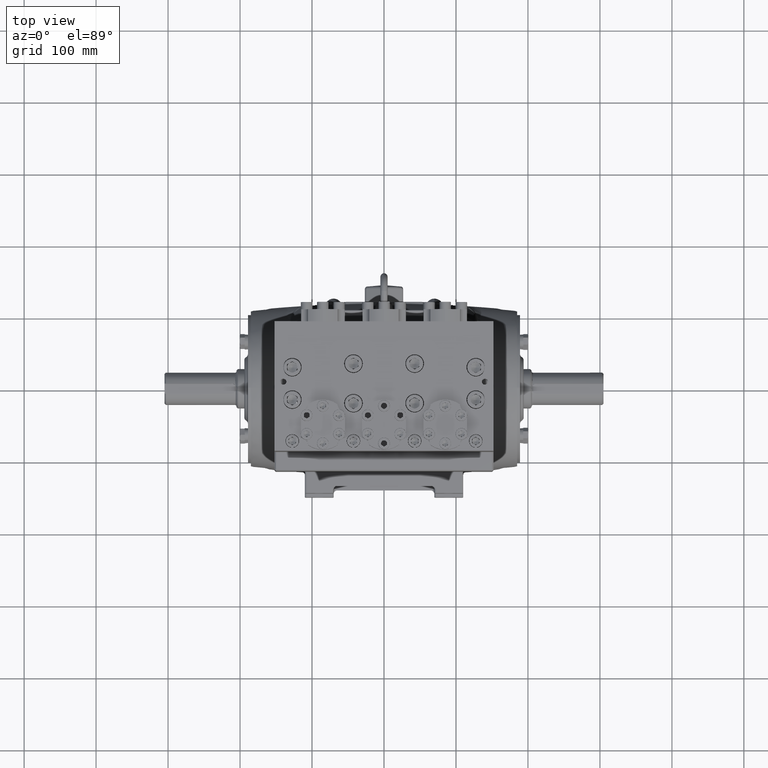
[diagram: clean part render]
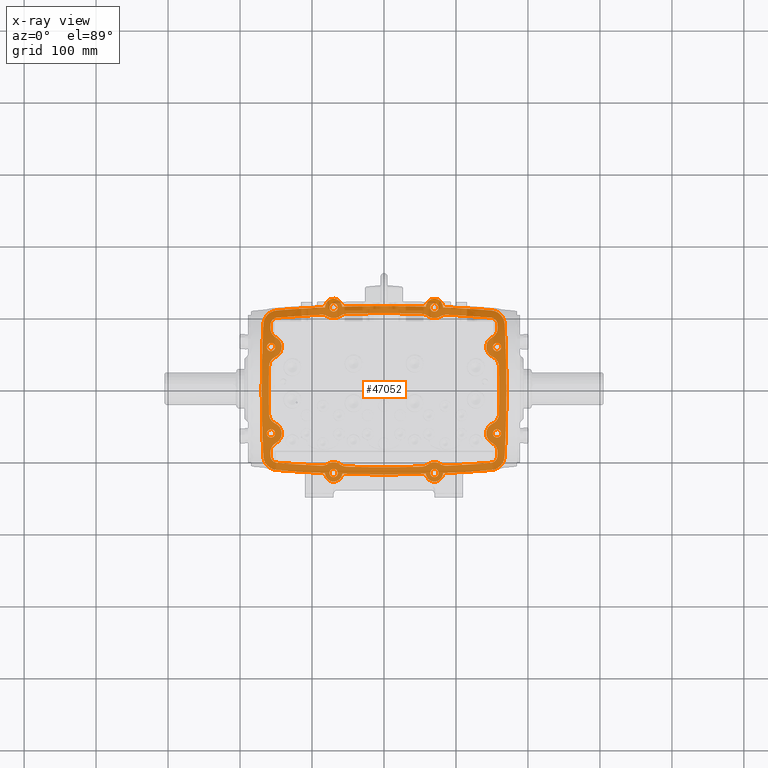
[diagram: x-ray — body ghosted, one internal face saturated and labeled with its STEP entity id]
A machine part, top view, then the same camera in x-ray: the body is ghosted and one INTERNAL B-rep face — a face not visible from any outside direction — is saturated and labeled: STEP entity #47052.
In plain terms, the highlighted planar face has unit normal (-0, 0, -1).
Its self-contained STEP definition (entity closure, byte-faithful):
#205 = CARTESIAN_POINT ( 'NONE',  ( 6.287298468513228933, -1.295798474597251504, -4.527559055118111075 ) ) ;
#294 = VERTEX_POINT ( 'NONE', #66908 ) ;
#635 = DIRECTION ( 'NONE',  ( -0.000000000000000000, -0.000000000000000000, -1.000000000000000000 ) ) ;
#964 = EDGE_CURVE ( 'NONE', #21010, #34440, #26823, .T. ) ;
#1030 = CIRCLE ( 'NONE', #19286, 70.86614173228346658 ) ;
#1106 = CARTESIAN_POINT ( 'NONE',  ( 0.000000000000000000, -66.25984251968503713, -4.527559055118111075 ) ) ;
#1281 = DIRECTION ( 'NONE',  ( 1.000000000000000000, 0.000000000000000000, 0.000000000000000000 ) ) ;
#1327 = DIRECTION ( 'NONE',  ( 1.000000000000000000, 0.000000000000000000, 0.000000000000000000 ) ) ;
#1533 = ORIENTED_EDGE ( 'NONE', *, *, #13244, .T. ) ;
#1878 = EDGE_CURVE ( 'NONE', #54940, #75515, #9956, .T. ) ;
#2008 = AXIS2_PLACEMENT_3D ( 'NONE', #73000, #52949, #79529 ) ;
#2011 = CARTESIAN_POINT ( 'NONE',  ( 2.755905511811023612, -4.527559055118110187, -4.527559055118111075 ) ) ;
#2030 = CARTESIAN_POINT ( 'NONE',  ( 6.600522642258369821, -3.617487388704947016, -4.527559055118111075 ) ) ;
#2217 = CARTESIAN_POINT ( 'NONE',  ( 6.215528999314378744, -3.433332498902715191, -4.527559055118111075 ) ) ;
#2444 = VERTEX_POINT ( 'NONE', #37324 ) ;
#2652 = CIRCLE ( 'NONE', #24815, 70.47244094488188182 ) ;
#2725 = CIRCLE ( 'NONE', #19695, 0.2263779527559057203 ) ;
#2901 = EDGE_CURVE ( 'NONE', #16295, #72583, #58497, .T. ) ;
#3037 = DIRECTION ( 'NONE',  ( 0.000000000000000000, 0.000000000000000000, 1.000000000000000000 ) ) ;
#3267 = ORIENTED_EDGE ( 'NONE', *, *, #76774, .T. ) ;
#3572 = FACE_BOUND ( 'NONE', #60139, .T. ) ;
#3724 = CIRCLE ( 'NONE', #21975, 0.5905511811023583801 ) ;
#3830 = VERTEX_POINT ( 'NONE', #18866 ) ;
#3918 = AXIS2_PLACEMENT_3D ( 'NONE', #31064, #24099, #17956 ) ;
#4114 = DIRECTION ( 'NONE',  ( 0.000000000000000000, 0.000000000000000000, 1.000000000000000000 ) ) ;
#4329 = AXIS2_PLACEMENT_3D ( 'NONE', #24324, #68609, #43206 ) ;
#4367 = VERTEX_POINT ( 'NONE', #58938 ) ;
#4654 = ORIENTED_EDGE ( 'NONE', *, *, #22416, .T. ) ;
#4667 = DIRECTION ( 'NONE',  ( 1.000000000000000000, 0.000000000000000000, 0.000000000000000000 ) ) ;
#5106 = CARTESIAN_POINT ( 'NONE',  ( 0.000000000000000000, -66.25984251968503713, -4.527559055118111075 ) ) ;
#5441 = DIRECTION ( 'NONE',  ( 0.000000000000000000, 0.000000000000000000, 1.000000000000000000 ) ) ;
#5487 = DIRECTION ( 'NONE',  ( -1.000000000000000000, 0.000000000000000000, 0.000000000000000000 ) ) ;
#5588 = DIRECTION ( 'NONE',  ( -0.000000000000000000, 0.000000000000000000, 1.000000000000000000 ) ) ;
#5593 = AXIS2_PLACEMENT_3D ( 'NONE', #71670, #7363, #72065 ) ;
#6061 = VERTEX_POINT ( 'NONE', #76156 ) ;
#6184 = EDGE_CURVE ( 'NONE', #59043, #28687, #19698, .T. ) ;
#6386 = VERTEX_POINT ( 'NONE', #54548 ) ;
#6411 = ORIENTED_EDGE ( 'NONE', *, *, #16241, .F. ) ;
#6591 = EDGE_CURVE ( 'NONE', #294, #57059, #57759, .T. ) ;
#6600 = CARTESIAN_POINT ( 'NONE',  ( 2.051618992759705939, 4.182728360702418158, -4.527559055118111075 ) ) ;
#6728 = ORIENTED_EDGE ( 'NONE', *, *, #76958, .F. ) ;
#6768 = CIRCLE ( 'NONE', #61776, 70.86614173228345237 ) ;
#6975 = DIRECTION ( 'NONE',  ( 1.000000000000000000, 0.000000000000000000, 0.000000000000000000 ) ) ;
#7021 = ORIENTED_EDGE ( 'NONE', *, *, #65896, .T. ) ;
#7105 = DIRECTION ( 'NONE',  ( -0.000000000000000000, -0.000000000000000000, -1.000000000000000000 ) ) ;
#7117 = CARTESIAN_POINT ( 'NONE',  ( 3.431250907682156903, -4.129016328419565340, -4.527559055118111075 ) ) ;
#7227 = ORIENTED_EDGE ( 'NONE', *, *, #52750, .T. ) ;
#7279 = ORIENTED_EDGE ( 'NONE', *, *, #68312, .T. ) ;
#7363 = DIRECTION ( 'NONE',  ( -0.000000000000000000, 0.000000000000000000, 1.000000000000000000 ) ) ;
#7634 = DIRECTION ( 'NONE',  ( -1.000000000000000000, 0.000000000000000000, 0.000000000000000000 ) ) ;
#7673 = AXIS2_PLACEMENT_3D ( 'NONE', #16535, #29643, #48901 ) ;
#7770 = EDGE_CURVE ( 'NONE', #57831, #42772, #55064, .T. ) ;
#7799 = EDGE_CURVE ( 'NONE', #57059, #294, #2725, .T. ) ;
#7853 = CARTESIAN_POINT ( 'NONE',  ( -6.181102362204723200, -2.362204724409448620, -4.527559055118111075 ) ) ;
#8232 = ORIENTED_EDGE ( 'NONE', *, *, #36036, .F. ) ;
#8249 = EDGE_CURVE ( 'NONE', #71209, #70759, #70747, .T. ) ;
#8260 = DIRECTION ( 'NONE',  ( 1.000000000000000000, 0.000000000000000000, 0.000000000000000000 ) ) ;
#8287 = ORIENTED_EDGE ( 'NONE', *, *, #79605, .T. ) ;
#8299 = ORIENTED_EDGE ( 'NONE', *, *, #76352, .F. ) ;
#8928 = EDGE_CURVE ( 'NONE', #74305, #78400, #14566, .T. ) ;
#8978 = EDGE_CURVE ( 'NONE', #49465, #43802, #56458, .T. ) ;
#9015 = DIRECTION ( 'NONE',  ( -1.000000000000000000, 0.000000000000000000, 0.000000000000000000 ) ) ;
#9144 = DIRECTION ( 'NONE',  ( 1.000000000000000000, 0.000000000000000000, 0.000000000000000000 ) ) ;
#9148 = AXIS2_PLACEMENT_3D ( 'NONE', #1106, #38774, #7634 ) ;
#9250 = DIRECTION ( 'NONE',  ( 1.000000000000000000, 0.000000000000000000, 0.000000000000000000 ) ) ;
#9279 = CARTESIAN_POINT ( 'NONE',  ( -6.287298468513228933, 1.295798474597258831, -4.527559055118111075 ) ) ;
#9574 = AXIS2_PLACEMENT_3D ( 'NONE', #67384, #29662, #42389 ) ;
#9705 = FACE_BOUND ( 'NONE', #41863, .T. ) ;
#9809 = CIRCLE ( 'NONE', #66084, 0.5905511811023615998 ) ;
#9956 = CIRCLE ( 'NONE', #77963, 70.47244094488188182 ) ;
#10095 = CARTESIAN_POINT ( 'NONE',  ( 0.000000000000000000, -66.25984251968503713, -4.527559055118111075 ) ) ;
#10510 = VERTEX_POINT ( 'NONE', #59465 ) ;
#10607 = CARTESIAN_POINT ( 'NONE',  ( 6.407480314960629642, -2.362204724409448620, -4.527559055118111075 ) ) ;
#10637 = ORIENTED_EDGE ( 'NONE', *, *, #964, .T. ) ;
#10680 = DIRECTION ( 'NONE',  ( 1.000000000000000000, 0.000000000000000000, 0.000000000000000000 ) ) ;
#10696 = VERTEX_POINT ( 'NONE', #49155 ) ;
#10782 = ORIENTED_EDGE ( 'NONE', *, *, #27752, .T. ) ;
#10864 = CIRCLE ( 'NONE', #44900, 0.2263779527559057203 ) ;
#11020 = CARTESIAN_POINT ( 'NONE',  ( -2.755905511811023612, -4.527559055118110187, -4.527559055118111075 ) ) ;
#11211 = CARTESIAN_POINT ( 'NONE',  ( -2.755905511811023612, -4.527559055118110187, -4.527559055118111075 ) ) ;
#11261 = CIRCLE ( 'NONE', #77936, 70.47244094488186761 ) ;
#11608 = EDGE_LOOP ( 'NONE', ( #64497, #59387 ) ) ;
#11801 = ORIENTED_EDGE ( 'NONE', *, *, #46329, .F. ) ;
#12010 = FACE_BOUND ( 'NONE', #33773, .T. ) ;
#12091 = CARTESIAN_POINT ( 'NONE',  ( 5.954724409448820310, 2.362204724409448620, -4.527559055118111075 ) ) ;
#12206 = VERTEX_POINT ( 'NONE', #32165 ) ;
#12283 = VERTEX_POINT ( 'NONE', #76409 ) ;
#12308 = AXIS2_PLACEMENT_3D ( 'NONE', #46242, #76970, #27388 ) ;
#12407 = EDGE_CURVE ( 'NONE', #34284, #63166, #17588, .T. ) ;
#12624 = CIRCLE ( 'NONE', #27184, 0.5905511811023611557 ) ;
#12641 = VERTEX_POINT ( 'NONE', #39044 ) ;
#12713 = AXIS2_PLACEMENT_3D ( 'NONE', #35659, #68038, #10680 ) ;
#12959 = EDGE_CURVE ( 'NONE', #69509, #70436, #68070, .T. ) ;
#13244 = EDGE_CURVE ( 'NONE', #32938, #80083, #39221, .T. ) ;
#13311 = DIRECTION ( 'NONE',  ( -1.000000000000000000, 0.000000000000000000, 0.000000000000000000 ) ) ;
#13464 = VERTEX_POINT ( 'NONE', #28286 ) ;
#14055 = DIRECTION ( 'NONE',  ( -0.000000000000000000, -0.000000000000000000, -1.000000000000000000 ) ) ;
#14111 = AXIS2_PLACEMENT_3D ( 'NONE', #36737, #49842, #68304 ) ;
#14141 = ORIENTED_EDGE ( 'NONE', *, *, #25606, .T. ) ;
#14287 = EDGE_CURVE ( 'NONE', #56849, #4367, #68184, .T. ) ;
#14336 = EDGE_CURVE ( 'NONE', #28687, #31905, #17092, .T. ) ;
#14566 = CIRCLE ( 'NONE', #72198, 70.47244094488188182 ) ;
#14584 = EDGE_CURVE ( 'NONE', #67305, #59635, #65610, .T. ) ;
#15059 = VERTEX_POINT ( 'NONE', #49517 ) ;
#15099 = AXIS2_PLACEMENT_3D ( 'NONE', #50510, #30841, #31247 ) ;
#15147 = CARTESIAN_POINT ( 'NONE',  ( -3.402497408455763317, 3.539165555949416841, -4.527559055118111075 ) ) ;
#15274 = ORIENTED_EDGE ( 'NONE', *, *, #73923, .F. ) ;
#15410 = DIRECTION ( 'NONE',  ( 1.000000000000000000, 0.000000000000000000, 0.000000000000000000 ) ) ;
#15946 = CARTESIAN_POINT ( 'NONE',  ( 2.051618992759716598, -4.182728360702411052, -4.527559055118111075 ) ) ;
#15998 = DIRECTION ( 'NONE',  ( -0.000000000000000000, 0.000000000000000000, 1.000000000000000000 ) ) ;
#16109 = CIRCLE ( 'NONE', #59308, 70.47244094488186761 ) ;
#16241 = EDGE_CURVE ( 'NONE', #15059, #24288, #52507, .T. ) ;
#16287 = CARTESIAN_POINT ( 'NONE',  ( -2.034426654831562598, -3.592427487403074604, -4.527559055118111075 ) ) ;
#16295 = VERTEX_POINT ( 'NONE', #61956 ) ;
#16535 = CARTESIAN_POINT ( 'NONE',  ( 2.755905511811023612, 4.527559055118110187, -4.527559055118111075 ) ) ;
#16559 = ORIENTED_EDGE ( 'NONE', *, *, #68556, .F. ) ;
#16717 = DIRECTION ( 'NONE',  ( -1.000000000000000000, 0.000000000000000000, 0.000000000000000000 ) ) ;
#16803 = DIRECTION ( 'NONE',  ( -1.000000000000000000, 0.000000000000000000, 0.000000000000000000 ) ) ;
#17092 = CIRCLE ( 'NONE', #66840, 0.3937007874015751585 ) ;
#17240 = DIRECTION ( 'NONE',  ( -0.000000000000000000, -0.000000000000000000, -1.000000000000000000 ) ) ;
#17345 = CARTESIAN_POINT ( 'NONE',  ( -5.846811382010106861, 3.969636542835870419, -4.527559055118111075 ) ) ;
#17518 = CARTESIAN_POINT ( 'NONE',  ( -5.696847126488339796, -1.284939828162086073, -4.527559055118111075 ) ) ;
#17588 = CIRCLE ( 'NONE', #52954, 0.3937007874015751585 ) ;
#17833 = ORIENTED_EDGE ( 'NONE', *, *, #47098, .T. ) ;
#17881 = CARTESIAN_POINT ( 'NONE',  ( 2.285324605308472812, -4.569440516842007582, -4.527559055118111075 ) ) ;
#17914 = CARTESIAN_POINT ( 'NONE',  ( -5.938974744346534607, 1.823572276285768456, -4.527559055118111075 ) ) ;
#17956 = DIRECTION ( 'NONE',  ( 1.000000000000000000, 0.000000000000000000, 0.000000000000000000 ) ) ;
#18389 = CIRCLE ( 'NONE', #44616, 0.2263779527559057203 ) ;
#18396 = EDGE_CURVE ( 'NONE', #3830, #10696, #49337, .T. ) ;
#18425 = DIRECTION ( 'NONE',  ( -1.000000000000000000, 0.000000000000000000, 0.000000000000000000 ) ) ;
#18483 = ORIENTED_EDGE ( 'NONE', *, *, #30068, .T. ) ;
#18596 = DIRECTION ( 'NONE',  ( -1.000000000000000000, 0.000000000000000000, 0.000000000000000000 ) ) ;
#18866 = CARTESIAN_POINT ( 'NONE',  ( -6.407480314960629642, -2.362204724409448620, -4.527559055118111075 ) ) ;
#18899 = VERTEX_POINT ( 'NONE', #39503 ) ;
#19219 = DIRECTION ( 'NONE',  ( -0.000000000000000000, -0.000000000000000000, -1.000000000000000000 ) ) ;
#19286 = AXIS2_PLACEMENT_3D ( 'NONE', #66609, #22319, #9250 ) ;
#19495 = EDGE_CURVE ( 'NONE', #59635, #53183, #66499, .T. ) ;
#19551 = EDGE_CURVE ( 'NONE', #4367, #56849, #41626, .T. ) ;
#19614 = CARTESIAN_POINT ( 'NONE',  ( 6.287298468513228933, 1.295798474597258831, -4.527559055118111075 ) ) ;
#19695 = AXIS2_PLACEMENT_3D ( 'NONE', #73397, #17240, #48800 ) ;
#19698 = CIRCLE ( 'NONE', #48507, 70.47244094488186761 ) ;
#20012 = DIRECTION ( 'NONE',  ( -1.000000000000000000, 0.000000000000000000, 0.000000000000000000 ) ) ;
#20073 = ORIENTED_EDGE ( 'NONE', *, *, #8249, .F. ) ;
#20112 = CARTESIAN_POINT ( 'NONE',  ( -6.407480314960631418, 2.362204724409448620, -4.527559055118111075 ) ) ;
#20172 = CIRCLE ( 'NONE', #79097, 0.2263779527559057203 ) ;
#20553 = VERTEX_POINT ( 'NONE', #36871 ) ;
#20847 = AXIS2_PLACEMENT_3D ( 'NONE', #79594, #5441, #42732 ) ;
#21010 = VERTEX_POINT ( 'NONE', #39538 ) ;
#21271 = DIRECTION ( 'NONE',  ( -1.000000000000000000, 0.000000000000000000, 0.000000000000000000 ) ) ;
#21351 = DIRECTION ( 'NONE',  ( 1.000000000000000000, 0.000000000000000000, 0.000000000000000000 ) ) ;
#21355 = EDGE_CURVE ( 'NONE', #72583, #16295, #38710, .T. ) ;
#21356 = AXIS2_PLACEMENT_3D ( 'NONE', #75077, #24670, #4667 ) ;
#21624 = DIRECTION ( 'NONE',  ( -0.000000000000000000, -0.000000000000000000, -1.000000000000000000 ) ) ;
#21684 = CIRCLE ( 'NONE', #74064, 0.5905511811023615998 ) ;
#21753 = DIRECTION ( 'NONE',  ( -0.000000000000000000, -0.000000000000000000, -1.000000000000000000 ) ) ;
#21945 = ORIENTED_EDGE ( 'NONE', *, *, #35356, .T. ) ;
#21975 = AXIS2_PLACEMENT_3D ( 'NONE', #7853, #52107, #8260 ) ;
#22080 = VERTEX_POINT ( 'NONE', #23904 ) ;
#22091 = CARTESIAN_POINT ( 'NONE',  ( 6.181102362204723200, -2.362204724409448620, -4.527559055118111075 ) ) ;
#22120 = CARTESIAN_POINT ( 'NONE',  ( 3.079201460133389912, -4.033362305533764847, -4.527559055118111075 ) ) ;
#22157 = CARTESIAN_POINT ( 'NONE',  ( -5.696847126488341573, 1.284939828162086073, -4.527559055118111075 ) ) ;
#22192 = ORIENTED_EDGE ( 'NONE', *, *, #18396, .F. ) ;
#22319 = DIRECTION ( 'NONE',  ( 0.000000000000000000, 0.000000000000000000, 1.000000000000000000 ) ) ;
#22386 = CARTESIAN_POINT ( 'NONE',  ( 0.000000000000000000, 66.25984251968503713, -4.527559055118111075 ) ) ;
#22416 = EDGE_CURVE ( 'NONE', #10510, #73638, #12624, .T. ) ;
#22534 = AXIS2_PLACEMENT_3D ( 'NONE', #37323, #36917, #55780 ) ;
#22760 = DIRECTION ( 'NONE',  ( -0.000000000000000000, -0.000000000000000000, -1.000000000000000000 ) ) ;
#22829 = ORIENTED_EDGE ( 'NONE', *, *, #19551, .F. ) ;
#22857 = CARTESIAN_POINT ( 'NONE',  ( -5.625679077422444330, 3.404561556174479975, -4.527559055118111075 ) ) ;
#22915 = CARTESIAN_POINT ( 'NONE',  ( 0.000000000000000000, -66.25984251968503713, -4.527559055118111075 ) ) ;
#23231 = CARTESIAN_POINT ( 'NONE',  ( 0.000000000000000000, 66.25984251968503713, -4.527559055118111075 ) ) ;
#23295 = VERTEX_POINT ( 'NONE', #17914 ) ;
#23904 = CARTESIAN_POINT ( 'NONE',  ( -6.600522642258368933, 3.617487388704958562, -4.527559055118111075 ) ) ;
#24099 = DIRECTION ( 'NONE',  ( 0.000000000000000000, 0.000000000000000000, 1.000000000000000000 ) ) ;
#24165 = CARTESIAN_POINT ( 'NONE',  ( 2.755905511811023612, -4.527559055118110187, -4.527559055118111075 ) ) ;
#24288 = VERTEX_POINT ( 'NONE', #38847 ) ;
#24324 = CARTESIAN_POINT ( 'NONE',  ( -5.814147631272622796, -3.577293084386014232, -4.527559055118111075 ) ) ;
#24360 = ORIENTED_EDGE ( 'NONE', *, *, #2901, .T. ) ;
#24425 = EDGE_LOOP ( 'NONE', ( #40959, #44940, #14141, #4654, #27967, #26806, #8287, #54990, #68962, #54567, #10637, #42604, #30640, #7279, #50220, #26546, #73239, #43093, #3267, #18483, #51059, #20073, #79283, #6728, #48527, #11801, #59849, #60858, #45912, #35755, #34985, #39358, #44876, #8299, #39985, #55289, #47118, #77656, #29753, #8232 ) ) ;
#24647 = AXIS2_PLACEMENT_3D ( 'NONE', #66400, #47533, #34032 ) ;
#24670 = DIRECTION ( 'NONE',  ( 0.000000000000000000, 0.000000000000000000, 1.000000000000000000 ) ) ;
#24807 = DIRECTION ( 'NONE',  ( 1.000000000000000000, 0.000000000000000000, 0.000000000000000000 ) ) ;
#24815 = AXIS2_PLACEMENT_3D ( 'NONE', #42305, #34938, #59958 ) ;
#25047 = AXIS2_PLACEMENT_3D ( 'NONE', #16287, #29798, #54828 ) ;
#25080 = VERTEX_POINT ( 'NONE', #65885 ) ;
#25493 = FACE_BOUND ( 'NONE', #29371, .T. ) ;
#25606 = EDGE_CURVE ( 'NONE', #74305, #10510, #60029, .T. ) ;
#25650 = CARTESIAN_POINT ( 'NONE',  ( -2.982283464566929165, 4.527559055118110187, -4.527559055118111075 ) ) ;
#25814 = EDGE_CURVE ( 'NONE', #24288, #63676, #57448, .T. ) ;
#26052 = AXIS2_PLACEMENT_3D ( 'NONE', #44243, #19219, #69249 ) ;
#26075 = ORIENTED_EDGE ( 'NONE', *, *, #40623, .T. ) ;
#26546 = ORIENTED_EDGE ( 'NONE', *, *, #6184, .T. ) ;
#26574 = CARTESIAN_POINT ( 'NONE',  ( 5.814147631272622796, -3.577293084386014232, -4.527559055118111075 ) ) ;
#26676 = CARTESIAN_POINT ( 'NONE',  ( 64.17322834645669616, 0.000000000000000000, -4.527559055118111075 ) ) ;
#26806 = ORIENTED_EDGE ( 'NONE', *, *, #43931, .T. ) ;
#26823 = CIRCLE ( 'NONE', #2008, 0.5905511811023615998 ) ;
#26959 = DIRECTION ( 'NONE',  ( -0.000000000000000000, -0.000000000000000000, -1.000000000000000000 ) ) ;
#27007 = EDGE_CURVE ( 'NONE', #31905, #30523, #2652, .T. ) ;
#27027 = CARTESIAN_POINT ( 'NONE',  ( 5.625679077422441665, -3.404561556174479975, -4.527559055118111075 ) ) ;
#27093 = CARTESIAN_POINT ( 'NONE',  ( -2.051618992759716598, -4.182728360702411052, -4.527559055118111075 ) ) ;
#27184 = AXIS2_PLACEMENT_3D ( 'NONE', #47146, #15998, #66014 ) ;
#27272 = EDGE_CURVE ( 'NONE', #53183, #6386, #60259, .T. ) ;
#27373 = ORIENTED_EDGE ( 'NONE', *, *, #28297, .F. ) ;
#27388 = DIRECTION ( 'NONE',  ( 1.000000000000000000, 0.000000000000000000, 0.000000000000000000 ) ) ;
#27394 = VERTEX_POINT ( 'NONE', #22120 ) ;
#27547 = ORIENTED_EDGE ( 'NONE', *, *, #47615, .F. ) ;
#27606 = DIRECTION ( 'NONE',  ( -0.000000000000000000, -0.000000000000000000, -1.000000000000000000 ) ) ;
#27752 = EDGE_CURVE ( 'NONE', #43802, #12206, #43219, .T. ) ;
#27967 = ORIENTED_EDGE ( 'NONE', *, *, #59165, .T. ) ;
#28010 = CARTESIAN_POINT ( 'NONE',  ( 2.755905511811023612, 4.527559055118110187, -4.527559055118111075 ) ) ;
#28038 = CIRCLE ( 'NONE', #12308, 0.5905511811023615998 ) ;
#28161 = ORIENTED_EDGE ( 'NONE', *, *, #69081, .T. ) ;
#28286 = CARTESIAN_POINT ( 'NONE',  ( -6.692913385826751771, 0.000000000000000000, -4.527559055118111075 ) ) ;
#28297 = EDGE_CURVE ( 'NONE', #59650, #52772, #18389, .T. ) ;
#28687 = VERTEX_POINT ( 'NONE', #36352 ) ;
#28846 = DIRECTION ( 'NONE',  ( 1.000000000000000000, 0.000000000000000000, 0.000000000000000000 ) ) ;
#28917 = CARTESIAN_POINT ( 'NONE',  ( 5.814147631272645000, -3.577293084386014232, -4.527559055118111075 ) ) ;
#28926 = VERTEX_POINT ( 'NONE', #37471 ) ;
#29058 = DIRECTION ( 'NONE',  ( -0.000000000000000000, -0.000000000000000000, -1.000000000000000000 ) ) ;
#29371 = EDGE_LOOP ( 'NONE', ( #7227, #21945 ) ) ;
#29419 = CARTESIAN_POINT ( 'NONE',  ( 6.407480314960631418, 2.362204724409448620, -4.527559055118111075 ) ) ;
#29537 = CIRCLE ( 'NONE', #76633, 70.47244094488186761 ) ;
#29600 = EDGE_CURVE ( 'NONE', #61571, #25080, #69598, .T. ) ;
#29643 = DIRECTION ( 'NONE',  ( -0.000000000000000000, -0.000000000000000000, -1.000000000000000000 ) ) ;
#29662 = DIRECTION ( 'NONE',  ( -0.000000000000000000, -0.000000000000000000, -1.000000000000000000 ) ) ;
#29753 = ORIENTED_EDGE ( 'NONE', *, *, #29600, .F. ) ;
#29798 = DIRECTION ( 'NONE',  ( 0.000000000000000000, 0.000000000000000000, 1.000000000000000000 ) ) ;
#30068 = EDGE_CURVE ( 'NONE', #27394, #79165, #32964, .T. ) ;
#30069 = DIRECTION ( 'NONE',  ( -1.000000000000000000, 0.000000000000000000, 0.000000000000000000 ) ) ;
#30156 = EDGE_CURVE ( 'NONE', #54187, #12641, #39518, .T. ) ;
#30523 = VERTEX_POINT ( 'NONE', #7117 ) ;
#30640 = ORIENTED_EDGE ( 'NONE', *, *, #30156, .T. ) ;
#30783 = AXIS2_PLACEMENT_3D ( 'NONE', #22857, #72466, #49083 ) ;
#30841 = DIRECTION ( 'NONE',  ( -0.000000000000000000, 0.000000000000000000, -1.000000000000000000 ) ) ;
#31064 = CARTESIAN_POINT ( 'NONE',  ( -2.755905511811023612, 4.527559055118110187, -4.527559055118111075 ) ) ;
#31118 = AXIS2_PLACEMENT_3D ( 'NONE', #67256, #21753, #47580 ) ;
#31247 = DIRECTION ( 'NONE',  ( -1.000000000000000000, 0.000000000000000000, 0.000000000000000000 ) ) ;
#31294 = EDGE_CURVE ( 'NONE', #20553, #35817, #61881, .T. ) ;
#31334 = CARTESIAN_POINT ( 'NONE',  ( -64.17322834645669616, 0.000000000000000000, -4.527559055118111075 ) ) ;
#31454 = CARTESIAN_POINT ( 'NONE',  ( 5.846811382010109526, -3.969636542835851767, -4.527559055118111075 ) ) ;
#31791 = VERTEX_POINT ( 'NONE', #45121 ) ;
#31905 = VERTEX_POINT ( 'NONE', #31454 ) ;
#32055 = AXIS2_PLACEMENT_3D ( 'NONE', #34576, #41141, #66147 ) ;
#32085 = CARTESIAN_POINT ( 'NONE',  ( -2.755905511811023612, -4.527559055118110187, -4.527559055118111075 ) ) ;
#32165 = CARTESIAN_POINT ( 'NONE',  ( -3.228318182014415783, -4.532727752454131398, -4.527559055118111075 ) ) ;
#32185 = DIRECTION ( 'NONE',  ( -1.000000000000000000, 0.000000000000000000, 0.000000000000000000 ) ) ;
#32520 = CIRCLE ( 'NONE', #57393, 0.5905511811023621549 ) ;
#32658 = AXIS2_PLACEMENT_3D ( 'NONE', #50832, #45086, #1281 ) ;
#32938 = VERTEX_POINT ( 'NONE', #59393 ) ;
#32964 = CIRCLE ( 'NONE', #61771, 0.5905511811023583801 ) ;
#33003 = CARTESIAN_POINT ( 'NONE',  ( 5.903390719813582876, -2.883383140291962743, -4.527559055118111075 ) ) ;
#33069 = ORIENTED_EDGE ( 'NONE', *, *, #61949, .T. ) ;
#33424 = CIRCLE ( 'NONE', #30783, 0.5905511811023615998 ) ;
#33467 = CIRCLE ( 'NONE', #43944, 0.2263779527559057203 ) ;
#33574 = CARTESIAN_POINT ( 'NONE',  ( -3.228318182014460191, 4.532727752454121628, -4.527559055118111075 ) ) ;
#33667 = CARTESIAN_POINT ( 'NONE',  ( -2.982283464566929165, -4.527559055118110187, -4.527559055118111075 ) ) ;
#33773 = EDGE_LOOP ( 'NONE', ( #16559, #27373 ) ) ;
#33776 = VERTEX_POINT ( 'NONE', #49400 ) ;
#34032 = DIRECTION ( 'NONE',  ( 1.000000000000000000, 0.000000000000000000, 0.000000000000000000 ) ) ;
#34251 = AXIS2_PLACEMENT_3D ( 'NONE', #15147, #46295, #70503 ) ;
#34284 = VERTEX_POINT ( 'NONE', #17345 ) ;
#34440 = VERTEX_POINT ( 'NONE', #19614 ) ;
#34505 = VERTEX_POINT ( 'NONE', #2030 ) ;
#34564 = DIRECTION ( 'NONE',  ( -1.000000000000000000, 0.000000000000000000, 0.000000000000000000 ) ) ;
#34576 = CARTESIAN_POINT ( 'NONE',  ( 5.814147631272622796, 3.577293084386040434, -4.527559055118111075 ) ) ;
#34596 = CARTESIAN_POINT ( 'NONE',  ( 64.17322834645669616, 0.000000000000000000, -4.527559055118111075 ) ) ;
#34664 = EDGE_CURVE ( 'NONE', #28926, #12283, #28038, .T. ) ;
#34681 = FACE_BOUND ( 'NONE', #72250, .T. ) ;
#34938 = DIRECTION ( 'NONE',  ( -0.000000000000000000, -0.000000000000000000, -1.000000000000000000 ) ) ;
#34985 = ORIENTED_EDGE ( 'NONE', *, *, #35627, .F. ) ;
#35002 = DIRECTION ( 'NONE',  ( 0.000000000000000000, 0.000000000000000000, 1.000000000000000000 ) ) ;
#35018 = DIRECTION ( 'NONE',  ( 0.000000000000000000, 0.000000000000000000, 1.000000000000000000 ) ) ;
#35086 = CIRCLE ( 'NONE', #46848, 70.86614173228346658 ) ;
#35349 = DIRECTION ( 'NONE',  ( -0.000000000000000000, -0.000000000000000000, -1.000000000000000000 ) ) ;
#35356 = EDGE_CURVE ( 'NONE', #2444, #79571, #20172, .T. ) ;
#35627 = EDGE_CURVE ( 'NONE', #75515, #33776, #9809, .T. ) ;
#35642 = AXIS2_PLACEMENT_3D ( 'NONE', #63255, #7105, #55881 ) ;
#35659 = CARTESIAN_POINT ( 'NONE',  ( -6.181102362204723200, -2.362204724409448620, -4.527559055118111075 ) ) ;
#35755 = ORIENTED_EDGE ( 'NONE', *, *, #41295, .F. ) ;
#35817 = VERTEX_POINT ( 'NONE', #55652 ) ;
#35820 = CARTESIAN_POINT ( 'NONE',  ( -5.814147631272645000, -3.577293084386014232, -4.527559055118111075 ) ) ;
#35888 = FACE_OUTER_BOUND ( 'NONE', #67771, .T. ) ;
#35992 = EDGE_CURVE ( 'NONE', #34505, #15059, #49158, .T. ) ;
#36036 = EDGE_CURVE ( 'NONE', #50128, #61571, #41262, .T. ) ;
#36146 = CARTESIAN_POINT ( 'NONE',  ( -6.181102362204725864, 2.362204724409448620, -4.527559055118111075 ) ) ;
#36352 = CARTESIAN_POINT ( 'NONE',  ( 6.207335136765503414, -3.597390236545475073, -4.527559055118111075 ) ) ;
#36377 = CARTESIAN_POINT ( 'NONE',  ( -6.181102362204723200, -2.362204724409448620, -4.527559055118111075 ) ) ;
#36706 = AXIS2_PLACEMENT_3D ( 'NONE', #71343, #76656, #52094 ) ;
#36737 = CARTESIAN_POINT ( 'NONE',  ( 6.181102362204725864, 2.362204724409448620, -4.527559055118111075 ) ) ;
#36871 = CARTESIAN_POINT ( 'NONE',  ( -6.207335136765503414, -3.597390236545475073, -4.527559055118111075 ) ) ;
#36917 = DIRECTION ( 'NONE',  ( 0.000000000000000000, 0.000000000000000000, 1.000000000000000000 ) ) ;
#36958 = CARTESIAN_POINT ( 'NONE',  ( -3.431250907682156903, -4.129016328419565340, -4.527559055118111075 ) ) ;
#37266 = CARTESIAN_POINT ( 'NONE',  ( -6.181102362204725864, 2.362204724409448620, -4.527559055118111075 ) ) ;
#37323 = CARTESIAN_POINT ( 'NONE',  ( -5.814147631272645000, 3.577293084386014232, -4.527559055118111075 ) ) ;
#37324 = CARTESIAN_POINT ( 'NONE',  ( 2.982283464566929165, 4.527559055118110187, -4.527559055118111075 ) ) ;
#37366 = DIRECTION ( 'NONE',  ( 1.000000000000000000, 0.000000000000000000, 0.000000000000000000 ) ) ;
#37437 = CARTESIAN_POINT ( 'NONE',  ( -6.600522642258369821, -3.617487388704947016, -4.527559055118111075 ) ) ;
#37471 = CARTESIAN_POINT ( 'NONE',  ( -5.903390719813582876, -2.883383140291962743, -4.527559055118111075 ) ) ;
#37833 = AXIS2_PLACEMENT_3D ( 'NONE', #36377, #60197, #67548 ) ;
#38064 = DIRECTION ( 'NONE',  ( -1.000000000000000000, 0.000000000000000000, 0.000000000000000000 ) ) ;
#38345 = CARTESIAN_POINT ( 'NONE',  ( 5.696847126488339796, -1.284939828162086073, -4.527559055118111075 ) ) ;
#38664 = CARTESIAN_POINT ( 'NONE',  ( 3.228318182014460191, 4.532727752454121628, -4.527559055118111075 ) ) ;
#38692 = AXIS2_PLACEMENT_3D ( 'NONE', #11211, #49703, #68969 ) ;
#38710 = CIRCLE ( 'NONE', #76593, 0.2263779527559057203 ) ;
#38774 = DIRECTION ( 'NONE',  ( -0.000000000000000000, -0.000000000000000000, -1.000000000000000000 ) ) ;
#38843 = EDGE_LOOP ( 'NONE', ( #24360, #58006 ) ) ;
#38847 = CARTESIAN_POINT ( 'NONE',  ( 3.228318182014415783, -4.532727752454131398, -4.527559055118111075 ) ) ;
#39044 = CARTESIAN_POINT ( 'NONE',  ( 5.938974744346532830, -1.823572276285768901, -4.527559055118111075 ) ) ;
#39221 = CIRCLE ( 'NONE', #3918, 0.4724409448818896462 ) ;
#39358 = ORIENTED_EDGE ( 'NONE', *, *, #1878, .F. ) ;
#39503 = CARTESIAN_POINT ( 'NONE',  ( -2.285324605308472812, -4.569440516842007582, -4.527559055118111075 ) ) ;
#39518 = CIRCLE ( 'NONE', #44782, 0.5905511811023615998 ) ;
#39538 = CARTESIAN_POINT ( 'NONE',  ( 5.938974744346534607, 1.823572276285768456, -4.527559055118111075 ) ) ;
#39668 = ORIENTED_EDGE ( 'NONE', *, *, #19495, .F. ) ;
#39883 = EDGE_CURVE ( 'NONE', #25080, #34284, #54606, .T. ) ;
#39964 = CIRCLE ( 'NONE', #32055, 0.3937007874015751585 ) ;
#39985 = ORIENTED_EDGE ( 'NONE', *, *, #71396, .F. ) ;
#40623 = EDGE_CURVE ( 'NONE', #80083, #67757, #1030, .T. ) ;
#40701 = CARTESIAN_POINT ( 'NONE',  ( 5.625679077422444330, 3.404561556174479975, -4.527559055118111075 ) ) ;
#40959 = ORIENTED_EDGE ( 'NONE', *, *, #45445, .F. ) ;
#41063 = VERTEX_POINT ( 'NONE', #61581 ) ;
#41141 = DIRECTION ( 'NONE',  ( -0.000000000000000000, -0.000000000000000000, -1.000000000000000000 ) ) ;
#41201 = EDGE_CURVE ( 'NONE', #22080, #13464, #74346, .T. ) ;
#41262 = CIRCLE ( 'NONE', #67472, 0.5905511811023611557 ) ;
#41295 = EDGE_CURVE ( 'NONE', #33776, #28926, #3724, .T. ) ;
#41488 = CARTESIAN_POINT ( 'NONE',  ( 0.000000000000000000, 66.25984251968503713, -4.527559055118111075 ) ) ;
#41626 = CIRCLE ( 'NONE', #70408, 0.2263779527559057203 ) ;
#41863 = EDGE_LOOP ( 'NONE', ( #27547, #48736 ) ) ;
#42305 = CARTESIAN_POINT ( 'NONE',  ( 0.000000000000000000, 66.25984251968503713, -4.527559055118111075 ) ) ;
#42389 = DIRECTION ( 'NONE',  ( 1.000000000000000000, 0.000000000000000000, 0.000000000000000000 ) ) ;
#42441 = AXIS2_PLACEMENT_3D ( 'NONE', #36146, #79187, #37366 ) ;
#42604 = ORIENTED_EDGE ( 'NONE', *, *, #52153, .T. ) ;
#42732 = DIRECTION ( 'NONE',  ( -1.000000000000000000, 0.000000000000000000, 0.000000000000000000 ) ) ;
#42772 = VERTEX_POINT ( 'NONE', #29419 ) ;
#43068 = DIRECTION ( 'NONE',  ( -0.000000000000000000, -0.000000000000000000, -1.000000000000000000 ) ) ;
#43093 = ORIENTED_EDGE ( 'NONE', *, *, #27007, .T. ) ;
#43206 = DIRECTION ( 'NONE',  ( 1.000000000000000000, 0.000000000000000000, 0.000000000000000000 ) ) ;
#43219 = CIRCLE ( 'NONE', #51114, 70.86614173228346658 ) ;
#43329 = VERTEX_POINT ( 'NONE', #78307 ) ;
#43802 = VERTEX_POINT ( 'NONE', #64992 ) ;
#43931 = EDGE_CURVE ( 'NONE', #43329, #31791, #44459, .T. ) ;
#43944 = AXIS2_PLACEMENT_3D ( 'NONE', #11020, #67978, #61830 ) ;
#44091 = AXIS2_PLACEMENT_3D ( 'NONE', #22091, #29058, #47111 ) ;
#44141 = DIRECTION ( 'NONE',  ( 1.000000000000000000, 0.000000000000000000, 0.000000000000000000 ) ) ;
#44206 = CARTESIAN_POINT ( 'NONE',  ( -6.287298468513228933, -1.295798474597251504, -4.527559055118111075 ) ) ;
#44228 = DIRECTION ( 'NONE',  ( 0.000000000000000000, 0.000000000000000000, 1.000000000000000000 ) ) ;
#44243 = CARTESIAN_POINT ( 'NONE',  ( 6.181102362204725864, 2.362204724409448620, -4.527559055118111075 ) ) ;
#44285 = CIRCLE ( 'NONE', #7673, 0.2263779527559057203 ) ;
#44367 = FACE_BOUND ( 'NONE', #24425, .T. ) ;
#44459 = CIRCLE ( 'NONE', #9148, 70.47244094488189603 ) ;
#44616 = AXIS2_PLACEMENT_3D ( 'NONE', #58765, #3037, #53013 ) ;
#44772 = CIRCLE ( 'NONE', #35642, 0.4724409448818896462 ) ;
#44782 = AXIS2_PLACEMENT_3D ( 'NONE', #38345, #50640, #24807 ) ;
#44876 = ORIENTED_EDGE ( 'NONE', *, *, #69429, .F. ) ;
#44900 = AXIS2_PLACEMENT_3D ( 'NONE', #56444, #50282, #44141 ) ;
#44940 = ORIENTED_EDGE ( 'NONE', *, *, #8928, .F. ) ;
#45086 = DIRECTION ( 'NONE',  ( 0.000000000000000000, 0.000000000000000000, 1.000000000000000000 ) ) ;
#45121 = CARTESIAN_POINT ( 'NONE',  ( 5.846811382010106861, 3.969636542835870419, -4.527559055118111075 ) ) ;
#45445 = EDGE_CURVE ( 'NONE', #78400, #50128, #52914, .T. ) ;
#45912 = ORIENTED_EDGE ( 'NONE', *, *, #34664, .F. ) ;
#46242 = CARTESIAN_POINT ( 'NONE',  ( -5.625679077422441665, -3.404561556174479975, -4.527559055118111075 ) ) ;
#46295 = DIRECTION ( 'NONE',  ( 0.000000000000000000, 0.000000000000000000, 1.000000000000000000 ) ) ;
#46329 = EDGE_CURVE ( 'NONE', #35817, #76446, #71350, .T. ) ;
#46782 = CARTESIAN_POINT ( 'NONE',  ( -2.529527559055117614, -4.527559055118110187, -4.527559055118111075 ) ) ;
#46848 = AXIS2_PLACEMENT_3D ( 'NONE', #10095, #72776, #60902 ) ;
#47036 = DIRECTION ( 'NONE',  ( -1.000000000000000000, 0.000000000000000000, 0.000000000000000000 ) ) ;
#47052 = ADVANCED_FACE ( 'NONE', ( #35888, #9705, #34681, #3572, #12010, #44367, #75086, #62421, #48897, #25493 ), #55857, .F. ) ;
#47098 = EDGE_CURVE ( 'NONE', #12206, #18899, #80489, .T. ) ;
#47111 = DIRECTION ( 'NONE',  ( -1.000000000000000000, 0.000000000000000000, 0.000000000000000000 ) ) ;
#47118 = ORIENTED_EDGE ( 'NONE', *, *, #12407, .F. ) ;
#47138 = ORIENTED_EDGE ( 'NONE', *, *, #58694, .T. ) ;
#47146 = CARTESIAN_POINT ( 'NONE',  ( 2.755905511811023612, 4.527559055118110187, -4.527559055118111075 ) ) ;
#47533 = DIRECTION ( 'NONE',  ( -0.000000000000000000, -0.000000000000000000, -1.000000000000000000 ) ) ;
#47580 = DIRECTION ( 'NONE',  ( -1.000000000000000000, 0.000000000000000000, 0.000000000000000000 ) ) ;
#47615 = EDGE_CURVE ( 'NONE', #70436, #69509, #33467, .T. ) ;
#47866 = DIRECTION ( 'NONE',  ( 0.000000000000000000, 0.000000000000000000, 1.000000000000000000 ) ) ;
#48228 = CARTESIAN_POINT ( 'NONE',  ( -5.879475132747624677, 4.361980001285691522, -4.527559055118111075 ) ) ;
#48400 = DIRECTION ( 'NONE',  ( -0.000000000000000000, -0.000000000000000000, -1.000000000000000000 ) ) ;
#48507 = AXIS2_PLACEMENT_3D ( 'NONE', #55525, #74747, #18596 ) ;
#48518 = AXIS2_PLACEMENT_3D ( 'NONE', #80696, #44228, #68433 ) ;
#48527 = ORIENTED_EDGE ( 'NONE', *, *, #74725, .F. ) ;
#48612 = AXIS2_PLACEMENT_3D ( 'NONE', #35820, #60847, #30069 ) ;
#48736 = ORIENTED_EDGE ( 'NONE', *, *, #12959, .F. ) ;
#48758 = DIRECTION ( 'NONE',  ( 0.000000000000000000, 0.000000000000000000, 1.000000000000000000 ) ) ;
#48800 = DIRECTION ( 'NONE',  ( -1.000000000000000000, 0.000000000000000000, 0.000000000000000000 ) ) ;
#48897 = FACE_BOUND ( 'NONE', #80965, .T. ) ;
#48901 = DIRECTION ( 'NONE',  ( -1.000000000000000000, 0.000000000000000000, 0.000000000000000000 ) ) ;
#49083 = DIRECTION ( 'NONE',  ( -1.000000000000000000, 0.000000000000000000, 0.000000000000000000 ) ) ;
#49108 = DIRECTION ( 'NONE',  ( -1.000000000000000000, 0.000000000000000000, 0.000000000000000000 ) ) ;
#49132 = DIRECTION ( 'NONE',  ( 0.000000000000000000, 0.000000000000000000, 1.000000000000000000 ) ) ;
#49155 = CARTESIAN_POINT ( 'NONE',  ( -5.954724409448817646, -2.362204724409448620, -4.527559055118111075 ) ) ;
#49158 = CIRCLE ( 'NONE', #70113, 0.7874015748031503170 ) ;
#49337 = CIRCLE ( 'NONE', #12713, 0.2263779527559057203 ) ;
#49400 = CARTESIAN_POINT ( 'NONE',  ( -5.938974744346532830, -1.823572276285768901, -4.527559055118111075 ) ) ;
#49429 = VERTEX_POINT ( 'NONE', #70222 ) ;
#49465 = VERTEX_POINT ( 'NONE', #37437 ) ;
#49517 = CARTESIAN_POINT ( 'NONE',  ( 5.879475132747616684, -4.361980001285688857, -4.527559055118111075 ) ) ;
#49588 = DIRECTION ( 'NONE',  ( -0.000000000000000000, -0.000000000000000000, -1.000000000000000000 ) ) ;
#49593 = CIRCLE ( 'NONE', #26052, 0.2263779527559057203 ) ;
#49703 = DIRECTION ( 'NONE',  ( 0.000000000000000000, 0.000000000000000000, 1.000000000000000000 ) ) ;
#49842 = DIRECTION ( 'NONE',  ( -0.000000000000000000, 0.000000000000000000, 1.000000000000000000 ) ) ;
#49873 = AXIS2_PLACEMENT_3D ( 'NONE', #40701, #65706, #59573 ) ;
#49905 = EDGE_CURVE ( 'NONE', #59430, #21010, #74293, .T. ) ;
#50041 = VERTEX_POINT ( 'NONE', #60815 ) ;
#50128 = VERTEX_POINT ( 'NONE', #60010 ) ;
#50206 = CIRCLE ( 'NONE', #21356, 70.86614173228345237 ) ;
#50220 = ORIENTED_EDGE ( 'NONE', *, *, #80908, .T. ) ;
#50282 = DIRECTION ( 'NONE',  ( 0.000000000000000000, 0.000000000000000000, 1.000000000000000000 ) ) ;
#50510 = CARTESIAN_POINT ( 'NONE',  ( 0.000000000000000000, 66.25984251968503713, -4.527559055118111075 ) ) ;
#50640 = DIRECTION ( 'NONE',  ( -0.000000000000000000, -0.000000000000000000, -1.000000000000000000 ) ) ;
#50832 = CARTESIAN_POINT ( 'NONE',  ( -2.755905511811023612, -4.527559055118110187, -4.527559055118111075 ) ) ;
#50879 = DIRECTION ( 'NONE',  ( 0.000000000000000000, 0.000000000000000000, 1.000000000000000000 ) ) ;
#51059 = ORIENTED_EDGE ( 'NONE', *, *, #65256, .T. ) ;
#51114 = AXIS2_PLACEMENT_3D ( 'NONE', #23231, #54816, #47036 ) ;
#51793 = CARTESIAN_POINT ( 'NONE',  ( -2.051618992759705939, 4.182728360702418158, -4.527559055118111075 ) ) ;
#52071 = DIRECTION ( 'NONE',  ( 0.000000000000000000, 0.000000000000000000, 1.000000000000000000 ) ) ;
#52094 = DIRECTION ( 'NONE',  ( -1.000000000000000000, 0.000000000000000000, 0.000000000000000000 ) ) ;
#52107 = DIRECTION ( 'NONE',  ( -0.000000000000000000, -0.000000000000000000, -1.000000000000000000 ) ) ;
#52153 = EDGE_CURVE ( 'NONE', #34440, #54187, #66478, .T. ) ;
#52245 = CIRCLE ( 'NONE', #37833, 0.2263779527559057203 ) ;
#52458 = DIRECTION ( 'NONE',  ( -0.000000000000000000, -0.000000000000000000, -1.000000000000000000 ) ) ;
#52505 = AXIS2_PLACEMENT_3D ( 'NONE', #24165, #49588, #18425 ) ;
#52507 = CIRCLE ( 'NONE', #62978, 70.86614173228346658 ) ;
#52750 = EDGE_CURVE ( 'NONE', #79571, #2444, #44285, .T. ) ;
#52772 = VERTEX_POINT ( 'NONE', #79232 ) ;
#52914 = CIRCLE ( 'NONE', #65962, 0.5905511811023624880 ) ;
#52949 = DIRECTION ( 'NONE',  ( -0.000000000000000000, -0.000000000000000000, -1.000000000000000000 ) ) ;
#52954 = AXIS2_PLACEMENT_3D ( 'NONE', #53061, #66160, #78026 ) ;
#53013 = DIRECTION ( 'NONE',  ( 1.000000000000000000, 0.000000000000000000, 0.000000000000000000 ) ) ;
#53036 = AXIS2_PLACEMENT_3D ( 'NONE', #77561, #76336, #9144 ) ;
#53061 = CARTESIAN_POINT ( 'NONE',  ( -5.814147631272622796, 3.577293084386040434, -4.527559055118111075 ) ) ;
#53135 = CARTESIAN_POINT ( 'NONE',  ( -2.755905511811023612, 4.527559055118110187, -4.527559055118111075 ) ) ;
#53183 = VERTEX_POINT ( 'NONE', #67936 ) ;
#53822 = CIRCLE ( 'NONE', #49873, 0.5905511811023615998 ) ;
#53878 = CARTESIAN_POINT ( 'NONE',  ( -5.903390719813585541, 2.883383140291963187, -4.527559055118111075 ) ) ;
#53936 = DIRECTION ( 'NONE',  ( 0.000000000000000000, 0.000000000000000000, 1.000000000000000000 ) ) ;
#54113 = ORIENTED_EDGE ( 'NONE', *, *, #27272, .F. ) ;
#54187 = VERTEX_POINT ( 'NONE', #205 ) ;
#54342 = CARTESIAN_POINT ( 'NONE',  ( 64.17322834645669616, 0.000000000000000000, -4.527559055118111075 ) ) ;
#54548 = CARTESIAN_POINT ( 'NONE',  ( 6.692913385826751771, 0.000000000000000000, -4.527559055118111075 ) ) ;
#54567 = ORIENTED_EDGE ( 'NONE', *, *, #49905, .T. ) ;
#54606 = CIRCLE ( 'NONE', #65074, 70.47244094488189603 ) ;
#54747 = DIRECTION ( 'NONE',  ( -0.000000000000000000, -0.000000000000000000, -1.000000000000000000 ) ) ;
#54816 = DIRECTION ( 'NONE',  ( 0.000000000000000000, 0.000000000000000000, 1.000000000000000000 ) ) ;
#54828 = DIRECTION ( 'NONE',  ( 1.000000000000000000, 0.000000000000000000, 0.000000000000000000 ) ) ;
#54940 = VERTEX_POINT ( 'NONE', #9279 ) ;
#54990 = ORIENTED_EDGE ( 'NONE', *, *, #72017, .T. ) ;
#55064 = CIRCLE ( 'NONE', #73368, 0.2263779527559057203 ) ;
#55174 = CARTESIAN_POINT ( 'NONE',  ( 3.079201460133393464, 4.033362305533763958, -4.527559055118111075 ) ) ;
#55289 = ORIENTED_EDGE ( 'NONE', *, *, #68770, .F. ) ;
#55363 = DIRECTION ( 'NONE',  ( 0.000000000000000000, 0.000000000000000000, 1.000000000000000000 ) ) ;
#55501 = CIRCLE ( 'NONE', #65976, 0.5905511811023615998 ) ;
#55525 = CARTESIAN_POINT ( 'NONE',  ( -64.17322834645669616, 0.000000000000000000, -4.527559055118111075 ) ) ;
#55599 = ORIENTED_EDGE ( 'NONE', *, *, #7770, .T. ) ;
#55652 = CARTESIAN_POINT ( 'NONE',  ( -5.846811382010109526, -3.969636542835851767, -4.527559055118111075 ) ) ;
#55780 = DIRECTION ( 'NONE',  ( 1.000000000000000000, 0.000000000000000000, 0.000000000000000000 ) ) ;
#55857 = PLANE ( 'NONE',  #15099 ) ;
#55881 = DIRECTION ( 'NONE',  ( -1.000000000000000000, 0.000000000000000000, 0.000000000000000000 ) ) ;
#56095 = CARTESIAN_POINT ( 'NONE',  ( -3.402497408455758876, -3.539165555949416841, -4.527559055118111075 ) ) ;
#56285 = DIRECTION ( 'NONE',  ( 1.000000000000000000, 0.000000000000000000, 0.000000000000000000 ) ) ;
#56340 = AXIS2_PLACEMENT_3D ( 'NONE', #22386, #77732, #58918 ) ;
#56444 = CARTESIAN_POINT ( 'NONE',  ( -2.755905511811023612, 4.527559055118110187, -4.527559055118111075 ) ) ;
#56458 = CIRCLE ( 'NONE', #48612, 0.7874015748031503170 ) ;
#56784 = CARTESIAN_POINT ( 'NONE',  ( 2.395166083321293993, -4.059993271260593950, -4.527559055118111075 ) ) ;
#56849 = VERTEX_POINT ( 'NONE', #20112 ) ;
#56873 = ORIENTED_EDGE ( 'NONE', *, *, #8978, .T. ) ;
#57059 = VERTEX_POINT ( 'NONE', #79495 ) ;
#57393 = AXIS2_PLACEMENT_3D ( 'NONE', #73452, #35349, #68124 ) ;
#57448 = CIRCLE ( 'NONE', #64010, 0.4724409448818896462 ) ;
#57513 = CIRCLE ( 'NONE', #20847, 70.86614173228346658 ) ;
#57639 = CARTESIAN_POINT ( 'NONE',  ( 5.879475132747624677, 4.361980001285691522, -4.527559055118111075 ) ) ;
#57759 = CIRCLE ( 'NONE', #52505, 0.2263779527559057203 ) ;
#57831 = VERTEX_POINT ( 'NONE', #12091 ) ;
#58000 = CIRCLE ( 'NONE', #59298, 0.5905511811023621549 ) ;
#58006 = ORIENTED_EDGE ( 'NONE', *, *, #21355, .T. ) ;
#58262 = ORIENTED_EDGE ( 'NONE', *, *, #65096, .F. ) ;
#58497 = CIRCLE ( 'NONE', #44091, 0.2263779527559057203 ) ;
#58694 = EDGE_CURVE ( 'NONE', #50041, #32938, #35086, .T. ) ;
#58765 = CARTESIAN_POINT ( 'NONE',  ( -2.755905511811023612, 4.527559055118110187, -4.527559055118111075 ) ) ;
#58918 = DIRECTION ( 'NONE',  ( 1.000000000000000000, 0.000000000000000000, 0.000000000000000000 ) ) ;
#58938 = CARTESIAN_POINT ( 'NONE',  ( -5.954724409448820310, 2.362204724409448620, -4.527559055118111075 ) ) ;
#59043 = VERTEX_POINT ( 'NONE', #2217 ) ;
#59165 = EDGE_CURVE ( 'NONE', #73638, #43329, #32520, .T. ) ;
#59261 = ORIENTED_EDGE ( 'NONE', *, *, #14287, .F. ) ;
#59292 = CIRCLE ( 'NONE', #80199, 0.5905511811023583801 ) ;
#59298 = AXIS2_PLACEMENT_3D ( 'NONE', #56095, #49132, #81065 ) ;
#59308 = AXIS2_PLACEMENT_3D ( 'NONE', #54342, #53936, #15410 ) ;
#59387 = ORIENTED_EDGE ( 'NONE', *, *, #7799, .T. ) ;
#59393 = CARTESIAN_POINT ( 'NONE',  ( -2.285324605308475476, 4.569440516842013800, -4.527559055118111075 ) ) ;
#59430 = VERTEX_POINT ( 'NONE', #80588 ) ;
#59465 = CARTESIAN_POINT ( 'NONE',  ( 2.395166083321290884, 4.059993271260593062, -4.527559055118111075 ) ) ;
#59525 = ORIENTED_EDGE ( 'NONE', *, *, #60281, .T. ) ;
#59573 = DIRECTION ( 'NONE',  ( 1.000000000000000000, 0.000000000000000000, 0.000000000000000000 ) ) ;
#59635 = VERTEX_POINT ( 'NONE', #57639 ) ;
#59650 = VERTEX_POINT ( 'NONE', #25650 ) ;
#59849 = ORIENTED_EDGE ( 'NONE', *, *, #31294, .F. ) ;
#59958 = DIRECTION ( 'NONE',  ( -1.000000000000000000, 0.000000000000000000, 0.000000000000000000 ) ) ;
#60010 = CARTESIAN_POINT ( 'NONE',  ( -2.395166083321290884, 4.059993271260593062, -4.527559055118111075 ) ) ;
#60029 = CIRCLE ( 'NONE', #24647, 0.5905511811023624880 ) ;
#60037 = DIRECTION ( 'NONE',  ( 1.000000000000000000, 0.000000000000000000, 0.000000000000000000 ) ) ;
#60139 = EDGE_LOOP ( 'NONE', ( #22829, #59261 ) ) ;
#60197 = DIRECTION ( 'NONE',  ( 0.000000000000000000, 0.000000000000000000, 1.000000000000000000 ) ) ;
#60259 = CIRCLE ( 'NONE', #36706, 70.86614173228345237 ) ;
#60274 = CARTESIAN_POINT ( 'NONE',  ( 5.814147631272645000, 3.577293084386014232, -4.527559055118111075 ) ) ;
#60281 = EDGE_CURVE ( 'NONE', #18899, #63676, #57513, .T. ) ;
#60303 = DIRECTION ( 'NONE',  ( 0.000000000000000000, 0.000000000000000000, 1.000000000000000000 ) ) ;
#60434 = ORIENTED_EDGE ( 'NONE', *, *, #62192, .F. ) ;
#60496 = DIRECTION ( 'NONE',  ( 1.000000000000000000, 0.000000000000000000, 0.000000000000000000 ) ) ;
#60815 = CARTESIAN_POINT ( 'NONE',  ( 2.285324605308475476, 4.569440516842013800, -4.527559055118111075 ) ) ;
#60847 = DIRECTION ( 'NONE',  ( 0.000000000000000000, 0.000000000000000000, 1.000000000000000000 ) ) ;
#60858 = ORIENTED_EDGE ( 'NONE', *, *, #79962, .F. ) ;
#60902 = DIRECTION ( 'NONE',  ( 1.000000000000000000, 0.000000000000000000, 0.000000000000000000 ) ) ;
#61118 = DIRECTION ( 'NONE',  ( -1.000000000000000000, 0.000000000000000000, 0.000000000000000000 ) ) ;
#61520 = CARTESIAN_POINT ( 'NONE',  ( -64.17322834645669616, 0.000000000000000000, -4.527559055118111075 ) ) ;
#61571 = VERTEX_POINT ( 'NONE', #63212 ) ;
#61581 = CARTESIAN_POINT ( 'NONE',  ( -3.079201460133389912, -4.033362305533764847, -4.527559055118111075 ) ) ;
#61771 = AXIS2_PLACEMENT_3D ( 'NONE', #67885, #5588, #32185 ) ;
#61776 = AXIS2_PLACEMENT_3D ( 'NONE', #61520, #43068, #68072 ) ;
#61830 = DIRECTION ( 'NONE',  ( 1.000000000000000000, 0.000000000000000000, 0.000000000000000000 ) ) ;
#61881 = CIRCLE ( 'NONE', #4329, 0.3937007874015751585 ) ;
#61949 = EDGE_CURVE ( 'NONE', #42772, #57831, #49593, .T. ) ;
#61956 = CARTESIAN_POINT ( 'NONE',  ( 5.954724409448817646, -2.362204724409448620, -4.527559055118111075 ) ) ;
#62192 = EDGE_CURVE ( 'NONE', #10696, #3830, #52245, .T. ) ;
#62421 = FACE_BOUND ( 'NONE', #38843, .T. ) ;
#62837 = CARTESIAN_POINT ( 'NONE',  ( 6.181102362204723200, -2.362204724409448620, -4.527559055118111075 ) ) ;
#62978 = AXIS2_PLACEMENT_3D ( 'NONE', #41488, #66489, #71823 ) ;
#63166 = VERTEX_POINT ( 'NONE', #79759 ) ;
#63212 = CARTESIAN_POINT ( 'NONE',  ( -3.079201460133393464, 4.033362305533763958, -4.527559055118111075 ) ) ;
#63255 = CARTESIAN_POINT ( 'NONE',  ( 2.755905511811023612, 4.527559055118110187, -4.527559055118111075 ) ) ;
#63676 = VERTEX_POINT ( 'NONE', #17881 ) ;
#63723 = ORIENTED_EDGE ( 'NONE', *, *, #14584, .F. ) ;
#64010 = AXIS2_PLACEMENT_3D ( 'NONE', #2011, #26959, #38064 ) ;
#64138 = EDGE_CURVE ( 'NONE', #49429, #59430, #53822, .T. ) ;
#64497 = ORIENTED_EDGE ( 'NONE', *, *, #6591, .T. ) ;
#64609 = EDGE_CURVE ( 'NONE', #6061, #71209, #68255, .T. ) ;
#64992 = CARTESIAN_POINT ( 'NONE',  ( -5.879475132747616684, -4.361980001285688857, -4.527559055118111075 ) ) ;
#65074 = AXIS2_PLACEMENT_3D ( 'NONE', #22915, #4114, #79063 ) ;
#65096 = EDGE_CURVE ( 'NONE', #6386, #34505, #6768, .T. ) ;
#65256 = EDGE_CURVE ( 'NONE', #79165, #70759, #73518, .T. ) ;
#65610 = CIRCLE ( 'NONE', #76052, 70.86614173228346658 ) ;
#65706 = DIRECTION ( 'NONE',  ( -0.000000000000000000, -0.000000000000000000, -1.000000000000000000 ) ) ;
#65885 = CARTESIAN_POINT ( 'NONE',  ( -3.431250907682149798, 4.129016328419567117, -4.527559055118111075 ) ) ;
#65896 = EDGE_CURVE ( 'NONE', #67757, #22080, #72283, .T. ) ;
#65962 = AXIS2_PLACEMENT_3D ( 'NONE', #76224, #52071, #75820 ) ;
#65976 = AXIS2_PLACEMENT_3D ( 'NONE', #22157, #60303, #21351 ) ;
#66014 = DIRECTION ( 'NONE',  ( -1.000000000000000000, 0.000000000000000000, 0.000000000000000000 ) ) ;
#66084 = AXIS2_PLACEMENT_3D ( 'NONE', #17518, #47866, #16717 ) ;
#66147 = DIRECTION ( 'NONE',  ( 1.000000000000000000, 0.000000000000000000, 0.000000000000000000 ) ) ;
#66160 = DIRECTION ( 'NONE',  ( 0.000000000000000000, 0.000000000000000000, 1.000000000000000000 ) ) ;
#66400 = CARTESIAN_POINT ( 'NONE',  ( 2.034426654831557268, 3.592427487403074604, -4.527559055118111075 ) ) ;
#66478 = CIRCLE ( 'NONE', #31118, 70.47244094488188182 ) ;
#66489 = DIRECTION ( 'NONE',  ( -0.000000000000000000, -0.000000000000000000, -1.000000000000000000 ) ) ;
#66499 = CIRCLE ( 'NONE', #71694, 0.7874015748031503170 ) ;
#66609 = CARTESIAN_POINT ( 'NONE',  ( 0.000000000000000000, -66.25984251968503713, -4.527559055118111075 ) ) ;
#66840 = AXIS2_PLACEMENT_3D ( 'NONE', #26574, #21624, #20012 ) ;
#66908 = CARTESIAN_POINT ( 'NONE',  ( 2.529527559055117614, -4.527559055118110187, -4.527559055118111075 ) ) ;
#67038 = DIRECTION ( 'NONE',  ( 1.000000000000000000, 0.000000000000000000, 0.000000000000000000 ) ) ;
#67166 = DIRECTION ( 'NONE',  ( -0.000000000000000000, -0.000000000000000000, -1.000000000000000000 ) ) ;
#67256 = CARTESIAN_POINT ( 'NONE',  ( -64.17322834645669616, 0.000000000000000000, -4.527559055118111075 ) ) ;
#67305 = VERTEX_POINT ( 'NONE', #38664 ) ;
#67384 = CARTESIAN_POINT ( 'NONE',  ( 3.402497408455758876, -3.539165555949416841, -4.527559055118111075 ) ) ;
#67472 = AXIS2_PLACEMENT_3D ( 'NONE', #53135, #54747, #67038 ) ;
#67548 = DIRECTION ( 'NONE',  ( 1.000000000000000000, 0.000000000000000000, 0.000000000000000000 ) ) ;
#67757 = VERTEX_POINT ( 'NONE', #48228 ) ;
#67771 = EDGE_LOOP ( 'NONE', ( #15274, #47138, #1533, #26075, #7021, #73346, #28161, #56873, #10782, #17833, #59525, #74509, #6411, #69280, #58262, #54113, #39668, #63723 ) ) ;
#67885 = CARTESIAN_POINT ( 'NONE',  ( 2.755905511811023612, -4.527559055118110187, -4.527559055118111075 ) ) ;
#67936 = CARTESIAN_POINT ( 'NONE',  ( 6.600522642258368933, 3.617487388704958562, -4.527559055118111075 ) ) ;
#67946 = VERTEX_POINT ( 'NONE', #76443 ) ;
#67978 = DIRECTION ( 'NONE',  ( 0.000000000000000000, 0.000000000000000000, 1.000000000000000000 ) ) ;
#68038 = DIRECTION ( 'NONE',  ( 0.000000000000000000, 0.000000000000000000, 1.000000000000000000 ) ) ;
#68070 = CIRCLE ( 'NONE', #32658, 0.2263779527559057203 ) ;
#68072 = DIRECTION ( 'NONE',  ( -1.000000000000000000, 0.000000000000000000, 0.000000000000000000 ) ) ;
#68124 = DIRECTION ( 'NONE',  ( -1.000000000000000000, 0.000000000000000000, 0.000000000000000000 ) ) ;
#68184 = CIRCLE ( 'NONE', #48518, 0.2263779527559057203 ) ;
#68255 = CIRCLE ( 'NONE', #25047, 0.5905511811023621549 ) ;
#68304 = DIRECTION ( 'NONE',  ( -1.000000000000000000, 0.000000000000000000, 0.000000000000000000 ) ) ;
#68312 = EDGE_CURVE ( 'NONE', #12641, #77404, #77539, .T. ) ;
#68433 = DIRECTION ( 'NONE',  ( 1.000000000000000000, 0.000000000000000000, 0.000000000000000000 ) ) ;
#68556 = EDGE_CURVE ( 'NONE', #52772, #59650, #10864, .T. ) ;
#68581 = DIRECTION ( 'NONE',  ( -0.000000000000000000, -0.000000000000000000, -1.000000000000000000 ) ) ;
#68609 = DIRECTION ( 'NONE',  ( 0.000000000000000000, 0.000000000000000000, 1.000000000000000000 ) ) ;
#68770 = EDGE_CURVE ( 'NONE', #63166, #67946, #16109, .T. ) ;
#68962 = ORIENTED_EDGE ( 'NONE', *, *, #64138, .T. ) ;
#68969 = DIRECTION ( 'NONE',  ( 1.000000000000000000, 0.000000000000000000, 0.000000000000000000 ) ) ;
#69081 = EDGE_CURVE ( 'NONE', #13464, #49465, #50206, .T. ) ;
#69249 = DIRECTION ( 'NONE',  ( -1.000000000000000000, 0.000000000000000000, 0.000000000000000000 ) ) ;
#69280 = ORIENTED_EDGE ( 'NONE', *, *, #35992, .F. ) ;
#69429 = EDGE_CURVE ( 'NONE', #23295, #54940, #55501, .T. ) ;
#69509 = VERTEX_POINT ( 'NONE', #33667 ) ;
#69598 = CIRCLE ( 'NONE', #34251, 0.5905511811023621549 ) ;
#70113 = AXIS2_PLACEMENT_3D ( 'NONE', #28917, #22760, #60496 ) ;
#70222 = CARTESIAN_POINT ( 'NONE',  ( 6.215528999314371639, 3.433332498902711194, -4.527559055118111075 ) ) ;
#70408 = AXIS2_PLACEMENT_3D ( 'NONE', #37266, #48758, #74949 ) ;
#70436 = VERTEX_POINT ( 'NONE', #46782 ) ;
#70449 = AXIS2_PLACEMENT_3D ( 'NONE', #26676, #50879, #1327 ) ;
#70503 = DIRECTION ( 'NONE',  ( 1.000000000000000000, 0.000000000000000000, 0.000000000000000000 ) ) ;
#70747 = CIRCLE ( 'NONE', #56340, 70.47244094488188182 ) ;
#70759 = VERTEX_POINT ( 'NONE', #15946 ) ;
#71209 = VERTEX_POINT ( 'NONE', #27093 ) ;
#71343 = CARTESIAN_POINT ( 'NONE',  ( -64.17322834645669616, 0.000000000000000000, -4.527559055118111075 ) ) ;
#71350 = CIRCLE ( 'NONE', #53036, 70.47244094488188182 ) ;
#71396 = EDGE_CURVE ( 'NONE', #67946, #73882, #33424, .T. ) ;
#71670 = CARTESIAN_POINT ( 'NONE',  ( 6.181102362204723200, -2.362204724409448620, -4.527559055118111075 ) ) ;
#71694 = AXIS2_PLACEMENT_3D ( 'NONE', #60274, #71753, #16803 ) ;
#71753 = DIRECTION ( 'NONE',  ( -0.000000000000000000, -0.000000000000000000, -1.000000000000000000 ) ) ;
#71823 = DIRECTION ( 'NONE',  ( 1.000000000000000000, 0.000000000000000000, 0.000000000000000000 ) ) ;
#72017 = EDGE_CURVE ( 'NONE', #74774, #49429, #11261, .T. ) ;
#72065 = DIRECTION ( 'NONE',  ( -1.000000000000000000, 0.000000000000000000, 0.000000000000000000 ) ) ;
#72198 = AXIS2_PLACEMENT_3D ( 'NONE', #5106, #35018, #60037 ) ;
#72250 = EDGE_LOOP ( 'NONE', ( #60434, #22192 ) ) ;
#72283 = CIRCLE ( 'NONE', #22534, 0.7874015748031503170 ) ;
#72374 = CIRCLE ( 'NONE', #9574, 0.5905511811023621549 ) ;
#72466 = DIRECTION ( 'NONE',  ( 0.000000000000000000, 0.000000000000000000, 1.000000000000000000 ) ) ;
#72583 = VERTEX_POINT ( 'NONE', #10607 ) ;
#72776 = DIRECTION ( 'NONE',  ( 0.000000000000000000, 0.000000000000000000, 1.000000000000000000 ) ) ;
#73000 = CARTESIAN_POINT ( 'NONE',  ( 5.696847126488341573, 1.284939828162086073, -4.527559055118111075 ) ) ;
#73239 = ORIENTED_EDGE ( 'NONE', *, *, #14336, .T. ) ;
#73346 = ORIENTED_EDGE ( 'NONE', *, *, #41201, .T. ) ;
#73368 = AXIS2_PLACEMENT_3D ( 'NONE', #79934, #48400, #61118 ) ;
#73397 = CARTESIAN_POINT ( 'NONE',  ( 2.755905511811023612, -4.527559055118110187, -4.527559055118111075 ) ) ;
#73452 = CARTESIAN_POINT ( 'NONE',  ( 3.402497408455763317, 3.539165555949416841, -4.527559055118111075 ) ) ;
#73518 = CIRCLE ( 'NONE', #76122, 0.5905511811023621549 ) ;
#73638 = VERTEX_POINT ( 'NONE', #55174 ) ;
#73882 = VERTEX_POINT ( 'NONE', #53878 ) ;
#73923 = EDGE_CURVE ( 'NONE', #50041, #67305, #44772, .T. ) ;
#74064 = AXIS2_PLACEMENT_3D ( 'NONE', #27027, #76210, #9015 ) ;
#74293 = CIRCLE ( 'NONE', #14111, 0.5905511811023583801 ) ;
#74305 = VERTEX_POINT ( 'NONE', #6600 ) ;
#74346 = CIRCLE ( 'NONE', #70449, 70.86614173228345237 ) ;
#74509 = ORIENTED_EDGE ( 'NONE', *, *, #25814, .F. ) ;
#74725 = EDGE_CURVE ( 'NONE', #76446, #41063, #58000, .T. ) ;
#74747 = DIRECTION ( 'NONE',  ( -0.000000000000000000, -0.000000000000000000, -1.000000000000000000 ) ) ;
#74774 = VERTEX_POINT ( 'NONE', #76538 ) ;
#74949 = DIRECTION ( 'NONE',  ( 1.000000000000000000, 0.000000000000000000, 0.000000000000000000 ) ) ;
#75077 = CARTESIAN_POINT ( 'NONE',  ( 64.17322834645669616, 0.000000000000000000, -4.527559055118111075 ) ) ;
#75086 = FACE_BOUND ( 'NONE', #11608, .T. ) ;
#75515 = VERTEX_POINT ( 'NONE', #44206 ) ;
#75820 = DIRECTION ( 'NONE',  ( -1.000000000000000000, 0.000000000000000000, 0.000000000000000000 ) ) ;
#76052 = AXIS2_PLACEMENT_3D ( 'NONE', #77430, #52458, #21271 ) ;
#76122 = AXIS2_PLACEMENT_3D ( 'NONE', #79031, #67166, #49108 ) ;
#76156 = CARTESIAN_POINT ( 'NONE',  ( -2.395166083321293993, -4.059993271260593950, -4.527559055118111075 ) ) ;
#76210 = DIRECTION ( 'NONE',  ( -0.000000000000000000, -0.000000000000000000, -1.000000000000000000 ) ) ;
#76224 = CARTESIAN_POINT ( 'NONE',  ( -2.034426654831557268, 3.592427487403074604, -4.527559055118111075 ) ) ;
#76336 = DIRECTION ( 'NONE',  ( 0.000000000000000000, 0.000000000000000000, 1.000000000000000000 ) ) ;
#76352 = EDGE_CURVE ( 'NONE', #73882, #23295, #76396, .T. ) ;
#76396 = CIRCLE ( 'NONE', #42441, 0.5905511811023583801 ) ;
#76409 = CARTESIAN_POINT ( 'NONE',  ( -6.215528999314378744, -3.433332498902715191, -4.527559055118111075 ) ) ;
#76443 = CARTESIAN_POINT ( 'NONE',  ( -6.215528999314371639, 3.433332498902711194, -4.527559055118111075 ) ) ;
#76446 = VERTEX_POINT ( 'NONE', #36958 ) ;
#76538 = CARTESIAN_POINT ( 'NONE',  ( 6.207335136765494532, 3.597390236545523035, -4.527559055118111075 ) ) ;
#76593 = AXIS2_PLACEMENT_3D ( 'NONE', #62837, #68581, #5487 ) ;
#76633 = AXIS2_PLACEMENT_3D ( 'NONE', #80727, #55363, #6975 ) ;
#76656 = DIRECTION ( 'NONE',  ( -0.000000000000000000, -0.000000000000000000, -1.000000000000000000 ) ) ;
#76774 = EDGE_CURVE ( 'NONE', #30523, #27394, #72374, .T. ) ;
#76958 = EDGE_CURVE ( 'NONE', #41063, #6061, #59292, .T. ) ;
#76970 = DIRECTION ( 'NONE',  ( 0.000000000000000000, 0.000000000000000000, 1.000000000000000000 ) ) ;
#77404 = VERTEX_POINT ( 'NONE', #33003 ) ;
#77430 = CARTESIAN_POINT ( 'NONE',  ( 0.000000000000000000, -66.25984251968503713, -4.527559055118111075 ) ) ;
#77539 = CIRCLE ( 'NONE', #5593, 0.5905511811023583801 ) ;
#77561 = CARTESIAN_POINT ( 'NONE',  ( 0.000000000000000000, 66.25984251968503713, -4.527559055118111075 ) ) ;
#77656 = ORIENTED_EDGE ( 'NONE', *, *, #39883, .F. ) ;
#77732 = DIRECTION ( 'NONE',  ( 0.000000000000000000, 0.000000000000000000, 1.000000000000000000 ) ) ;
#77936 = AXIS2_PLACEMENT_3D ( 'NONE', #31334, #635, #13311 ) ;
#77963 = AXIS2_PLACEMENT_3D ( 'NONE', #34596, #35002, #28846 ) ;
#78026 = DIRECTION ( 'NONE',  ( -1.000000000000000000, 0.000000000000000000, 0.000000000000000000 ) ) ;
#78307 = CARTESIAN_POINT ( 'NONE',  ( 3.431250907682149798, 4.129016328419567117, -4.527559055118111075 ) ) ;
#78400 = VERTEX_POINT ( 'NONE', #51793 ) ;
#78818 = CARTESIAN_POINT ( 'NONE',  ( 2.529527559055117614, 4.527559055118110187, -4.527559055118111075 ) ) ;
#79031 = CARTESIAN_POINT ( 'NONE',  ( 2.034426654831562598, -3.592427487403074604, -4.527559055118111075 ) ) ;
#79063 = DIRECTION ( 'NONE',  ( 1.000000000000000000, 0.000000000000000000, 0.000000000000000000 ) ) ;
#79097 = AXIS2_PLACEMENT_3D ( 'NONE', #28010, #27606, #34564 ) ;
#79165 = VERTEX_POINT ( 'NONE', #56784 ) ;
#79187 = DIRECTION ( 'NONE',  ( -0.000000000000000000, -0.000000000000000000, -1.000000000000000000 ) ) ;
#79232 = CARTESIAN_POINT ( 'NONE',  ( -2.529527559055117614, 4.527559055118110187, -4.527559055118111075 ) ) ;
#79283 = ORIENTED_EDGE ( 'NONE', *, *, #64609, .F. ) ;
#79495 = CARTESIAN_POINT ( 'NONE',  ( 2.982283464566929165, -4.527559055118110187, -4.527559055118111075 ) ) ;
#79529 = DIRECTION ( 'NONE',  ( -1.000000000000000000, 0.000000000000000000, 0.000000000000000000 ) ) ;
#79571 = VERTEX_POINT ( 'NONE', #78818 ) ;
#79594 = CARTESIAN_POINT ( 'NONE',  ( 0.000000000000000000, 66.25984251968503713, -4.527559055118111075 ) ) ;
#79605 = EDGE_CURVE ( 'NONE', #31791, #74774, #39964, .T. ) ;
#79759 = CARTESIAN_POINT ( 'NONE',  ( -6.207335136765494532, 3.597390236545523035, -4.527559055118111075 ) ) ;
#79934 = CARTESIAN_POINT ( 'NONE',  ( 6.181102362204725864, 2.362204724409448620, -4.527559055118111075 ) ) ;
#79962 = EDGE_CURVE ( 'NONE', #12283, #20553, #29537, .T. ) ;
#80083 = VERTEX_POINT ( 'NONE', #33574 ) ;
#80199 = AXIS2_PLACEMENT_3D ( 'NONE', #32085, #14055, #56285 ) ;
#80489 = CIRCLE ( 'NONE', #38692, 0.4724409448818896462 ) ;
#80588 = CARTESIAN_POINT ( 'NONE',  ( 5.903390719813585541, 2.883383140291963187, -4.527559055118111075 ) ) ;
#80696 = CARTESIAN_POINT ( 'NONE',  ( -6.181102362204725864, 2.362204724409448620, -4.527559055118111075 ) ) ;
#80727 = CARTESIAN_POINT ( 'NONE',  ( 64.17322834645669616, 0.000000000000000000, -4.527559055118111075 ) ) ;
#80908 = EDGE_CURVE ( 'NONE', #77404, #59043, #21684, .T. ) ;
#80965 = EDGE_LOOP ( 'NONE', ( #55599, #33069 ) ) ;
#81065 = DIRECTION ( 'NONE',  ( -1.000000000000000000, 0.000000000000000000, 0.000000000000000000 ) ) ;